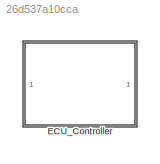
MODEL slx_26d537a10cca
KIND model
CONFIG AbsTol = auto
CONFIG EnableMultiTasking = on
CONFIG FixedStep = auto
CONFIG MaxStep = auto
CONFIG MinStep = auto
CONFIG RelTol = 1e-3
CONFIG SampleTimeConstraint = Unconstrained
CONFIG SolverName = FixedStepAuto
CONFIG StartTime = 0.0
CONFIG StopTime = 10.0
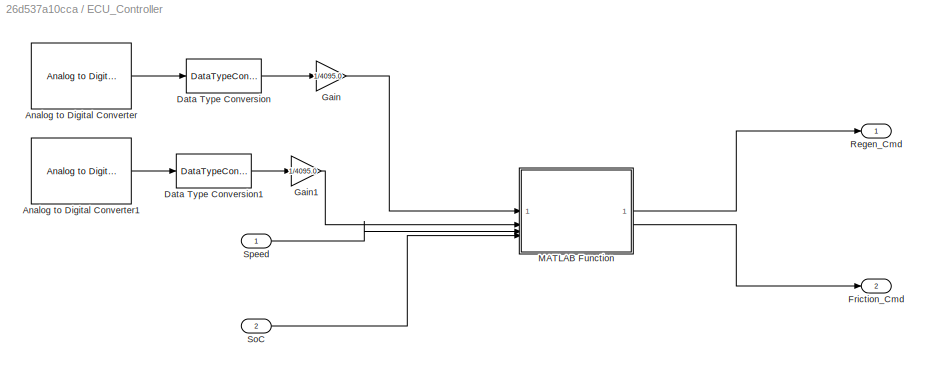
BLOCK [SubSystem] ECU_Controller
  TreatAsAtomicUnit = on
BLOCK [Reference] ECU_Controller/Analog to Digital Converter  REF=stm32f4xxblockslib/Analog to Digital Converter
  LibrarySourceBlock = stm32f1xxblockslib/Analog to Digital Converter
  SourceBlock = stm32f4xxblockslib/Analog to Digital Converter
  SourceType = stm32cube.blocks.AnalogInput
BLOCK [Reference] ECU_Controller/Analog to Digital Converter1  REF=stm32f4xxblockslib/Analog to Digital Converter
  LibrarySourceBlock = stm32f1xxblockslib/Analog to Digital Converter
  SourceBlock = stm32f4xxblockslib/Analog to Digital Converter
  SourceType = stm32cube.blocks.AnalogInput
BLOCK [DataTypeConversion] ECU_Controller/Data Type Conversion
  OutDataTypeStr = single
  RndMeth = Floor
  SaturateOnIntegerOverflow = off
BLOCK [DataTypeConversion] ECU_Controller/Data Type Conversion1
  OutDataTypeStr = single
  RndMeth = Floor
  SaturateOnIntegerOverflow = off
BLOCK [Outport] ECU_Controller/Friction_Cmd
  OutDataTypeStr = single
  Port = 2
BLOCK [Gain] ECU_Controller/Gain
  Gain = 1/4095.0
  OutDataTypeStr = single
BLOCK [Gain] ECU_Controller/Gain1
  Gain = 1/4095.0
  OutDataTypeStr = single
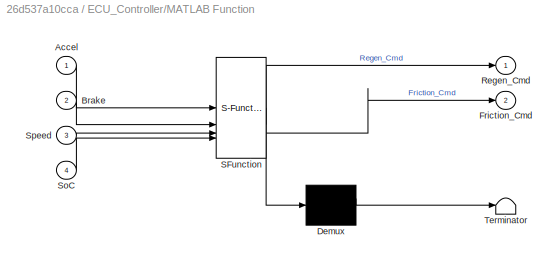
BLOCK [SubSystem] ECU_Controller/MATLAB Function
  ErrorFcn = Stateflow.Translate.translate
  PermitHierarchicalResolution = ExplicitOnly
  SFBlockType = MATLAB Function
  TreatAsAtomicUnit = on
BLOCK [Demux] ECU_Controller/MATLAB Function/ Demux 
  Outputs = 1
BLOCK [S-Function] ECU_Controller/MATLAB Function/ SFunction 
  EnableBusSupport = off
  FunctionName = sf_sfun
  PortCounts = [4 3]
  SFcnIsStateOwnerBlock = off
  SFunctionDeploymentMode = off
  Tag = Stateflow S-Function 2
BLOCK [Terminator] ECU_Controller/MATLAB Function/ Terminator 
BLOCK [Inport] ECU_Controller/MATLAB Function/Accel
BLOCK [Inport] ECU_Controller/MATLAB Function/Brake
  Port = 2
BLOCK [Outport] ECU_Controller/MATLAB Function/Friction_Cmd
  Port = 2
BLOCK [Outport] ECU_Controller/MATLAB Function/Regen_Cmd
BLOCK [Inport] ECU_Controller/MATLAB Function/SoC
  Port = 4
BLOCK [Inport] ECU_Controller/MATLAB Function/Speed
  Port = 3
BLOCK [Outport] ECU_Controller/Regen_Cmd
  OutDataTypeStr = single
BLOCK [Inport] ECU_Controller/SoC
  OutDataTypeStr = single
  Port = 2
BLOCK [Inport] ECU_Controller/Speed
  OutDataTypeStr = single
LINE ECU_Controller/Analog to Digital Converter1:1 -> ECU_Controller/Data Type Conversion1:1
LINE ECU_Controller/Analog to Digital Converter:1 -> ECU_Controller/Data Type Conversion:1
LINE ECU_Controller/Data Type Conversion1:1 -> ECU_Controller/Gain1:1
LINE ECU_Controller/Data Type Conversion:1 -> ECU_Controller/Gain:1
LINE ECU_Controller/Gain1:1 -> ECU_Controller/MATLAB Function:2
LINE ECU_Controller/Gain:1 -> ECU_Controller/MATLAB Function:1
LINE ECU_Controller/MATLAB Function:1 -> ECU_Controller/Regen_Cmd:1
LINE ECU_Controller/MATLAB Function:2 -> ECU_Controller/Friction_Cmd:1
LINE ECU_Controller/SoC:1 -> ECU_Controller/MATLAB Function:4
LINE ECU_Controller/Speed:1 -> ECU_Controller/MATLAB Function:3
CHART ECU_Controller/MATLAB Function states=1 transitions=1
  STATE_LABEL 'eML_blk_kernel()'
  STATE_LABEL 'SCRIPT:\nfunction [Regen_Cmd, Friction_Cmd] = ECU_Logic(Accel, Brake, Speed, SoC)\n% ECU_Logic - Final Production Version\n% Implements robust Torque Splitting, Safe Interpolation, and SoC Protection.\n%\n% Inputs:\n%   Accel : Accelerator Pedal (0.0 to 1.0)\n%   Brake : Brake Pedal (0.0 to 1.0)\n%   Speed : Vehicle Speed (m/s) [Auto-detects km/h and converts]\n%   SoC   : Battery State of Charge (0.0 to 1...<+3608ch>'
CHART  states=0 transitions=0
